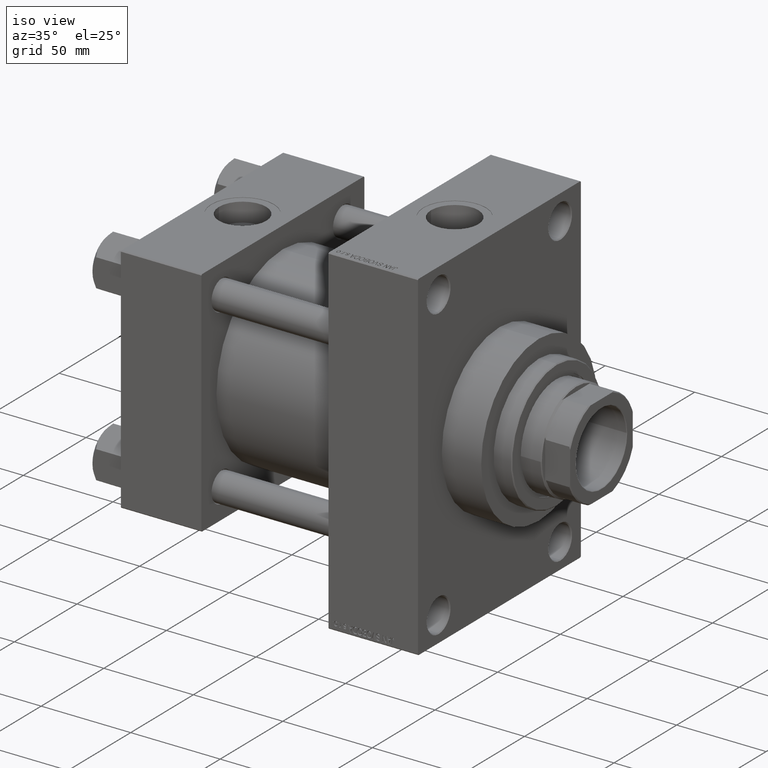
[diagram: clean part render]
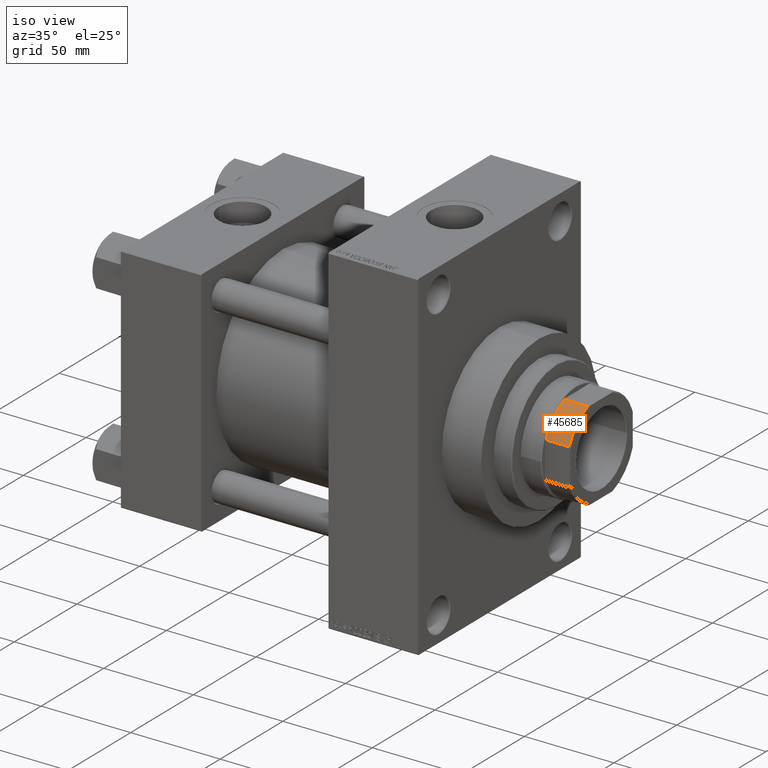
[diagram: same view with one face highlighted and labeled with its STEP entity id]
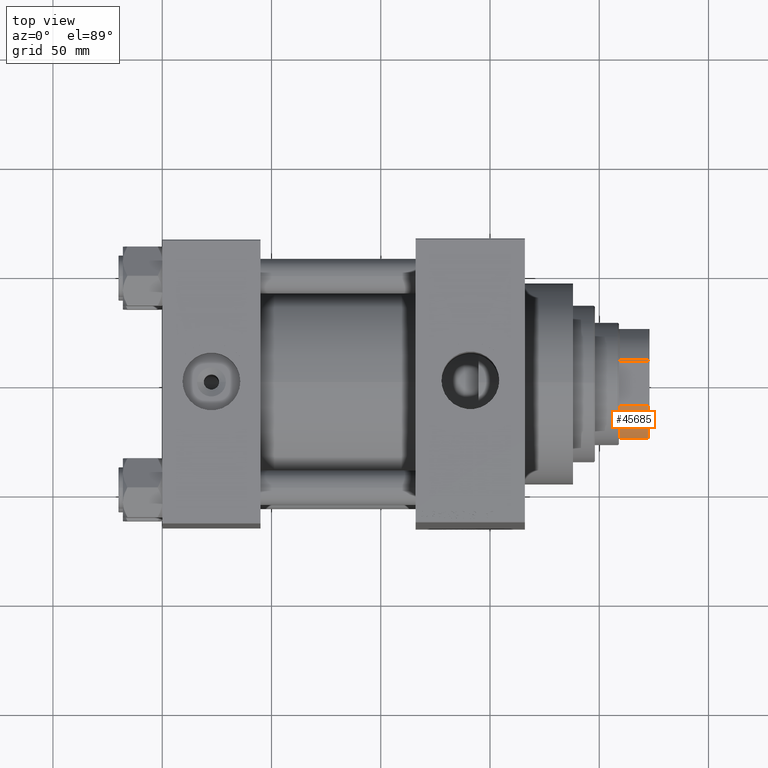
[diagram: same view with one face highlighted and labeled with its STEP entity id]
A machine part, iso view. The second image highlights one B-rep face of the part: STEP entity #45685.
A second angle (top view) of the same face is appended — the face is thin or edge-on in the first view.
In plain terms, the highlighted cylindrical surface (partial cylindrical patch) has radius 27 mm, axis along (1, 0, 0).
Its self-contained STEP definition (entity closure, byte-faithful):
#538 = VERTEX_POINT ( 'NONE', #21322 ) ;
#603 = EDGE_LOOP ( 'NONE', ( #21068, #31460, #33681, #46482 ) ) ;
#4548 = FACE_OUTER_BOUND ( 'NONE', #603, .T. ) ;
#4949 = AXIS2_PLACEMENT_3D ( 'NONE', #22918, #37918, #23153 ) ;
#7516 = DIRECTION ( 'NONE',  ( 1.000000000000000000, 0.000000000000000000, 0.000000000000000000 ) ) ;
#9379 = AXIS2_PLACEMENT_3D ( 'NONE', #41957, #41725, #12965 ) ;
#11950 = EDGE_CURVE ( 'NONE', #22962, #43280, #38862, .T. ) ;
#12965 = DIRECTION ( 'NONE',  ( 1.000000000000000000, 0.000000000000000000, 0.000000000000000000 ) ) ;
#14311 = CARTESIAN_POINT ( 'NONE',  ( 10.19803902718556188, -25.00000000000000355, -0.001000000000001000089 ) ) ;
#14368 = VECTOR ( 'NONE', #33901, 1000.000000000000000 ) ;
#14511 = EDGE_CURVE ( 'NONE', #538, #42432, #29696, .T. ) ;
#16739 = VECTOR ( 'NONE', #40636, 1000.000000000000000 ) ;
#19143 = CARTESIAN_POINT ( 'NONE',  ( 24.99999999999999645, -10.19803902718558675, -0.001000000000001000089 ) ) ;
#19951 = CYLINDRICAL_SURFACE ( 'NONE', #9379, 27.00000000000000355 ) ;
#21068 = ORIENTED_EDGE ( 'NONE', *, *, #22034, .T. ) ;
#21322 = CARTESIAN_POINT ( 'NONE',  ( 24.99999999999999645, -10.19803902718558675, 177.4999999999999716 ) ) ;
#22034 = EDGE_CURVE ( 'NONE', #43280, #538, #37525, .T. ) ;
#22918 = CARTESIAN_POINT ( 'NONE',  ( 0.000000000000000000, 0.000000000000000000, 164.4999999999999716 ) ) ;
#22962 = VERTEX_POINT ( 'NONE', #33850 ) ;
#23153 = DIRECTION ( 'NONE',  ( -1.000000000000000000, 0.000000000000000000, 0.000000000000000000 ) ) ;
#23762 = EDGE_CURVE ( 'NONE', #22962, #42432, #33398, .T. ) ;
#25127 = CARTESIAN_POINT ( 'NONE',  ( 0.000000000000000000, 0.000000000000000000, 177.4999999999999716 ) ) ;
#29696 = CIRCLE ( 'NONE', #41239, 27.00000000000000355 ) ;
#31460 = ORIENTED_EDGE ( 'NONE', *, *, #14511, .T. ) ;
#33398 = LINE ( 'NONE', #14311, #16739 ) ;
#33681 = ORIENTED_EDGE ( 'NONE', *, *, #23762, .F. ) ;
#33850 = CARTESIAN_POINT ( 'NONE',  ( 10.19803902718556188, -25.00000000000000355, 164.4999999999999716 ) ) ;
#33901 = DIRECTION ( 'NONE',  ( -0.000000000000000000, -0.000000000000000000, 1.000000000000000000 ) ) ;
#37525 = LINE ( 'NONE', #19143, #14368 ) ;
#37685 = CARTESIAN_POINT ( 'NONE',  ( 24.99999999999999645, -10.19803902718558675, 164.4999999999999716 ) ) ;
#37918 = DIRECTION ( 'NONE',  ( -0.000000000000000000, -0.000000000000000000, 1.000000000000000000 ) ) ;
#38862 = CIRCLE ( 'NONE', #4949, 27.00000000000000355 ) ;
#40599 = DIRECTION ( 'NONE',  ( -0.000000000000000000, -0.000000000000000000, -1.000000000000000000 ) ) ;
#40636 = DIRECTION ( 'NONE',  ( -0.000000000000000000, -0.000000000000000000, 1.000000000000000000 ) ) ;
#41239 = AXIS2_PLACEMENT_3D ( 'NONE', #25127, #40599, #7516 ) ;
#41725 = DIRECTION ( 'NONE',  ( -0.000000000000000000, -0.000000000000000000, 1.000000000000000000 ) ) ;
#41957 = CARTESIAN_POINT ( 'NONE',  ( 0.000000000000000000, 0.000000000000000000, -0.001000000000001000089 ) ) ;
#42432 = VERTEX_POINT ( 'NONE', #47472 ) ;
#43280 = VERTEX_POINT ( 'NONE', #37685 ) ;
#45685 = ADVANCED_FACE ( 'NONE', ( #4548 ), #19951, .T. ) ;
#46482 = ORIENTED_EDGE ( 'NONE', *, *, #11950, .T. ) ;
#47472 = CARTESIAN_POINT ( 'NONE',  ( 10.19803902718556188, -25.00000000000000355, 177.4999999999999716 ) ) ;